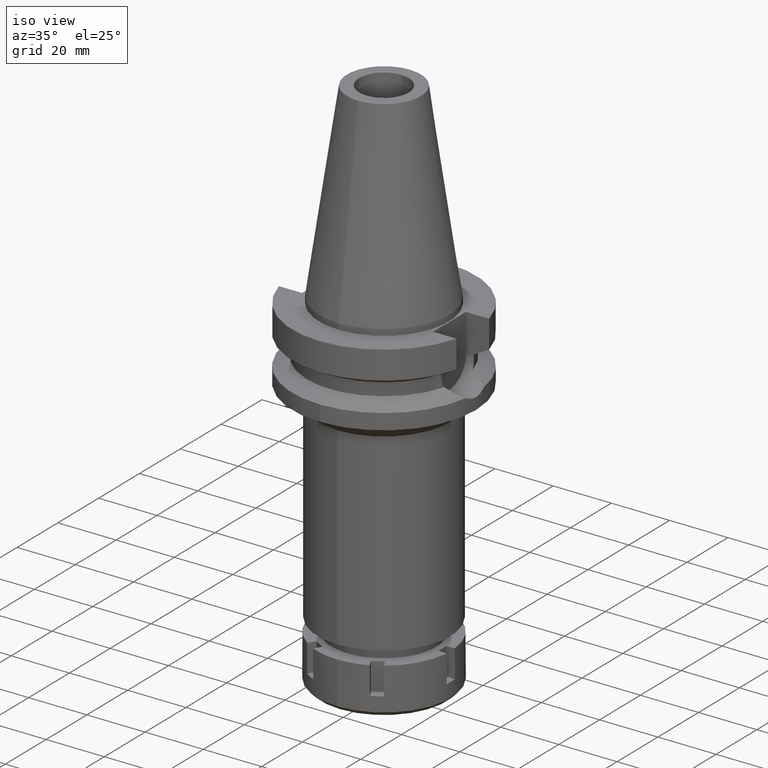
[diagram: clean part render]
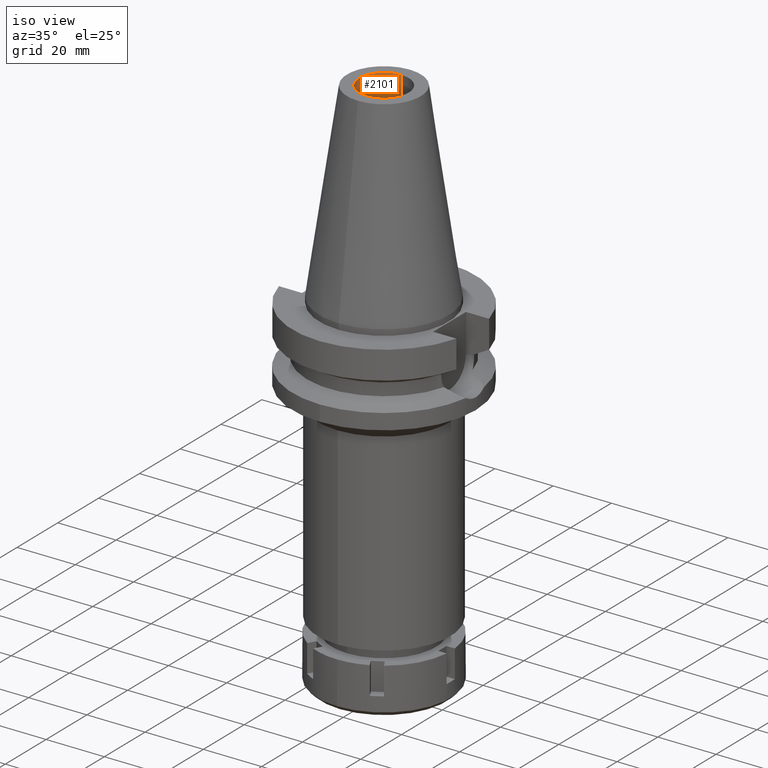
[diagram: same view with one face highlighted and labeled with its STEP entity id]
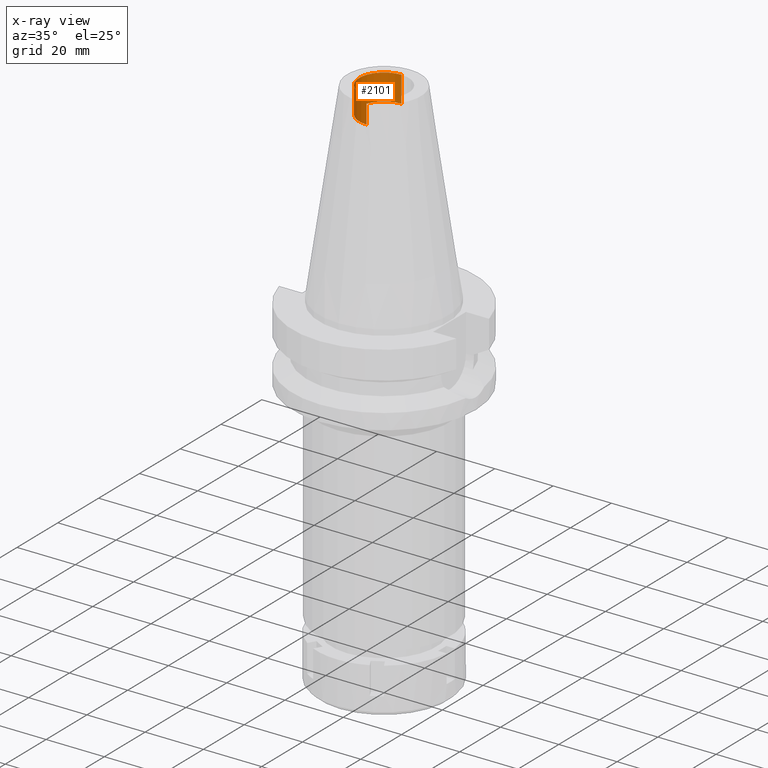
[diagram: x-ray of the same camera — body ghosted, the highlighted face saturated]
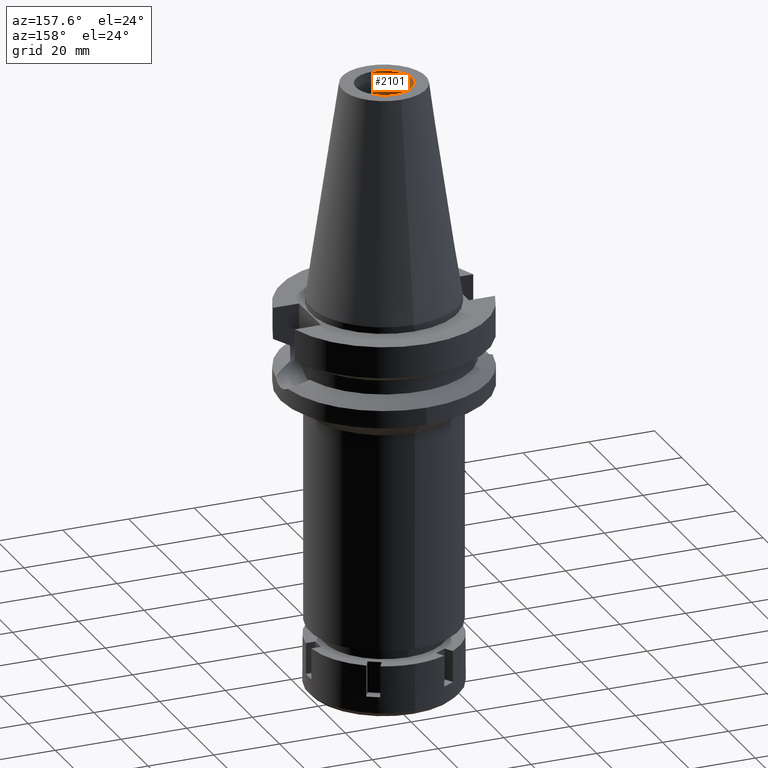
[diagram: same view with one face highlighted and labeled with its STEP entity id]
A machine part, iso view. The second image highlights one B-rep face of the part: STEP entity #2101.
The next image is the same camera in x-ray: the body ghosted, the highlighted face saturated — about 0% of this face is hidden behind the body in this view.
A second angle (auxiliary view) of the same face is appended — the face is thin or edge-on in the first view.
In plain terms, the highlighted cylindrical surface (edge-blend (fillet) strip) has radius 8.5 mm, axis along (0, 0, -1).
Its self-contained STEP definition (entity closure, byte-faithful):
#89 = ORIENTED_EDGE ( 'NONE', *, *, #2192, .T. ) ;
#139 = CARTESIAN_POINT ( 'NONE',  ( 0.0000000000000000000, 2.134191976873999699E-14, 74.26999999999999602 ) ) ;
#164 = VERTEX_POINT ( 'NONE', #2078 ) ;
#167 = ORIENTED_EDGE ( 'NONE', *, *, #2990, .F. ) ;
#311 = VERTEX_POINT ( 'NONE', #2447 ) ;
#361 = CYLINDRICAL_SURFACE ( 'NONE', #2696, 8.500000000000000000 ) ;
#401 = VECTOR ( 'NONE', #638, 1000.000000000000000 ) ;
#475 = DIRECTION ( 'NONE',  ( 0.0000000000000000000, 1.000000000000000000, 0.0000000000000000000 ) ) ;
#498 = VERTEX_POINT ( 'NONE', #2819 ) ;
#575 = CIRCLE ( 'NONE', #2271, 8.500000000000000000 ) ;
#638 = DIRECTION ( 'NONE',  ( 0.0000000000000000000, 0.0000000000000000000, 1.000000000000000000 ) ) ;
#666 = ORIENTED_EDGE ( 'NONE', *, *, #2238, .T. ) ;
#806 = CIRCLE ( 'NONE', #3169, 8.500000000000000000 ) ;
#856 = ORIENTED_EDGE ( 'NONE', *, *, #2659, .T. ) ;
#872 = CARTESIAN_POINT ( 'NONE',  ( 0.0000000000000000000, -8.500000000000000000, 56.39999999999999858 ) ) ;
#1018 = EDGE_LOOP ( 'NONE', ( #666, #167, #856, #89 ) ) ;
#1090 = DIRECTION ( 'NONE',  ( 0.0000000000000000000, 0.0000000000000000000, -1.000000000000000000 ) ) ;
#1323 = DIRECTION ( 'NONE',  ( 0.0000000000000000000, 0.0000000000000000000, 1.000000000000000000 ) ) ;
#1482 = DIRECTION ( 'NONE',  ( 0.0000000000000000000, -1.000000000000000000, 0.0000000000000000000 ) ) ;
#1601 = CARTESIAN_POINT ( 'NONE',  ( 0.0000000000000000000, 2.134191976873999699E-14, 65.40000000000000568 ) ) ;
#1769 = CARTESIAN_POINT ( 'NONE',  ( 0.0000000000000000000, 8.500000000000000000, 56.39999999999999858 ) ) ;
#1804 = LINE ( 'NONE', #1769, #401 ) ;
#1964 = CARTESIAN_POINT ( 'NONE',  ( 0.0000000000000000000, 2.134191976873999699E-14, 56.39999999999999858 ) ) ;
#2049 = VERTEX_POINT ( 'NONE', #872 ) ;
#2078 = CARTESIAN_POINT ( 'NONE',  ( 0.0000000000000000000, 8.500000000000000000, 65.40000000000000568 ) ) ;
#2101 = ADVANCED_FACE ( 'NONE', ( #2941 ), #361, .F. ) ;
#2192 = EDGE_CURVE ( 'NONE', #311, #164, #1804, .T. ) ;
#2238 = EDGE_CURVE ( 'NONE', #164, #498, #575, .T. ) ;
#2271 = AXIS2_PLACEMENT_3D ( 'NONE', #1601, #1323, #475 ) ;
#2346 = DIRECTION ( 'NONE',  ( 0.0000000000000000000, 0.0000000000000000000, -1.000000000000000000 ) ) ;
#2447 = CARTESIAN_POINT ( 'NONE',  ( 0.0000000000000000000, 8.500000000000000000, 56.39999999999999858 ) ) ;
#2659 = EDGE_CURVE ( 'NONE', #2049, #311, #806, .T. ) ;
#2696 = AXIS2_PLACEMENT_3D ( 'NONE', #139, #2346, #1482 ) ;
#2819 = CARTESIAN_POINT ( 'NONE',  ( 0.0000000000000000000, -8.500000000000000000, 65.40000000000000568 ) ) ;
#2849 = DIRECTION ( 'NONE',  ( 0.0000000000000000000, -1.000000000000000000, 0.0000000000000000000 ) ) ;
#2941 = FACE_OUTER_BOUND ( 'NONE', #1018, .T. ) ;
#2990 = EDGE_CURVE ( 'NONE', #2049, #498, #3604, .T. ) ;
#3065 = DIRECTION ( 'NONE',  ( 0.0000000000000000000, 0.0000000000000000000, 1.000000000000000000 ) ) ;
#3110 = VECTOR ( 'NONE', #3065, 1000.000000000000000 ) ;
#3169 = AXIS2_PLACEMENT_3D ( 'NONE', #1964, #1090, #2849 ) ;
#3604 = LINE ( 'NONE', #3643, #3110 ) ;
#3643 = CARTESIAN_POINT ( 'NONE',  ( 0.0000000000000000000, -8.500000000000000000, 56.39999999999999858 ) ) ;